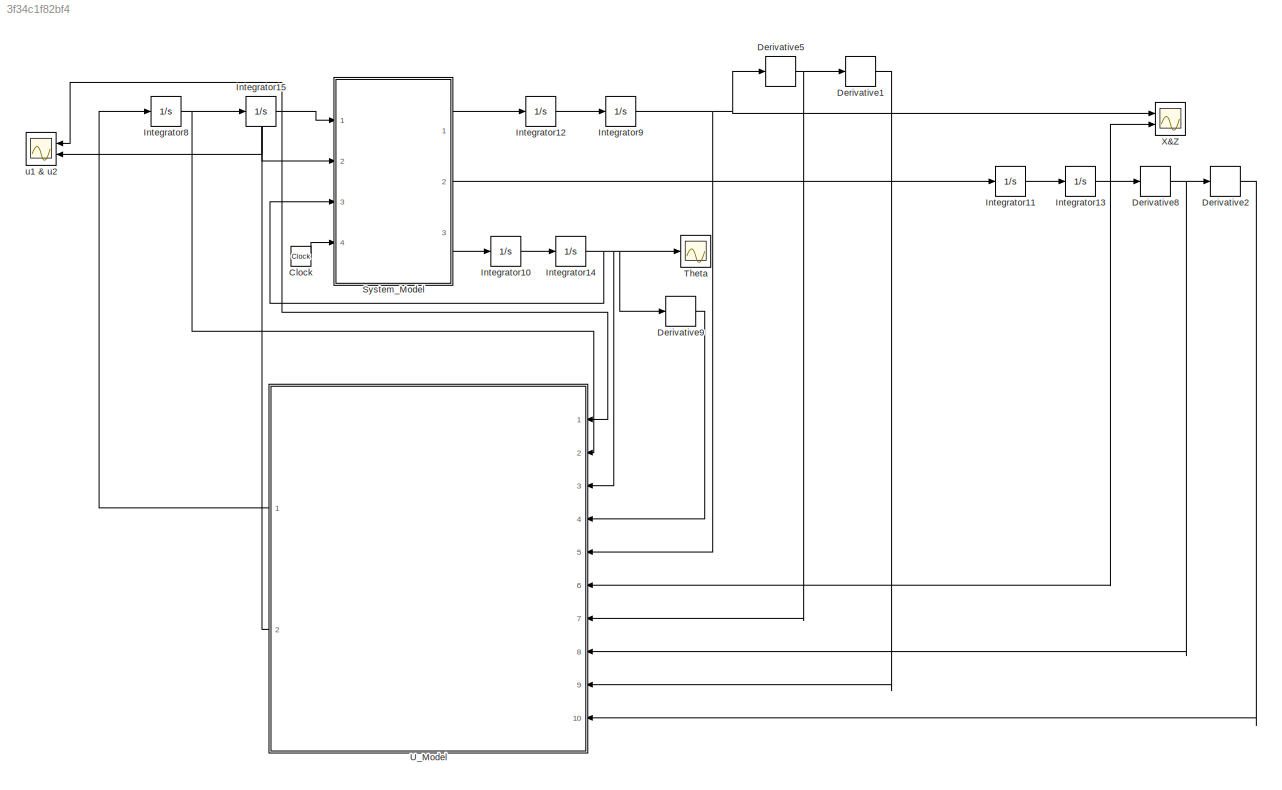
MODEL slx_3f34c1f82bf4
KIND model
CONFIG AbsTol = auto
CONFIG EnableMultiTasking = off
CONFIG FixedStep = 0.001
CONFIG MaxStep = auto
CONFIG MinStep = auto
CONFIG RelTol = 1e-3
CONFIG SampleTimeConstraint = Unconstrained
CONFIG Solver = FixedStepAuto
CONFIG SolverName = FixedStepAuto
CONFIG StartTime = 0.0
CONFIG StopTime = 20.0
BLOCK [Clock] Clock
BLOCK [Derivative] Derivative1
BLOCK [Derivative] Derivative2
BLOCK [Derivative] Derivative5
BLOCK [Derivative] Derivative8
BLOCK [Derivative] Derivative9
BLOCK [Integrator] Integrator10
  InitialCondition = 1
  Ports = [1, 1]
BLOCK [Integrator] Integrator11
  Ports = [1, 1]
BLOCK [Integrator] Integrator12
  InitialCondition = 1
  Ports = [1, 1]
BLOCK [Integrator] Integrator13
  Ports = [1, 1]
BLOCK [Integrator] Integrator14
  Ports = [1, 1]
BLOCK [Integrator] Integrator15
  InitialCondition = 1
  Ports = [1, 1]
BLOCK [Integrator] Integrator8
  Ports = [1, 1]
BLOCK [Integrator] Integrator9
  InitialCondition = 1
  Ports = [1, 1]
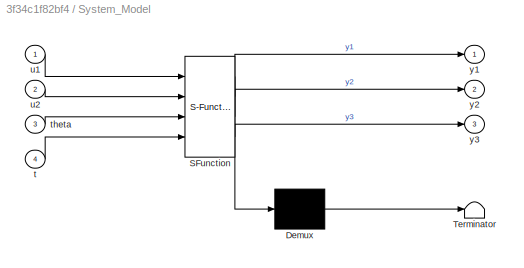
BLOCK [SubSystem] System_Model
  ErrorFcn = Stateflow.Translate.translate
  PermitHierarchicalResolution = ExplicitOnly
  Ports = [4, 3]
  RequestExecContextInheritance = off
  SFBlockType = MATLAB Function
  TreatAsAtomicUnit = on
  Variant = off
BLOCK [Demux] System_Model/ Demux 
  Outputs = 1
  Ports = [1, 1]
BLOCK [S-Function] System_Model/ SFunction 
  EnableBusSupport = on
  FunctionName = sf_sfun
  PortCounts = [4 4]
  Ports = [4, 4]
  SFcnIsStateOwnerBlock = off
  SFunctionDeploymentMode = off
  Tag = Stateflow S-Function NOLCOlab2Q3 3
BLOCK [Terminator] System_Model/ Terminator 
BLOCK [Inport] System_Model/t
  IconDisplay = Port number
  Port = 4
BLOCK [Inport] System_Model/theta
  IconDisplay = Port number
  Port = 3
BLOCK [Inport] System_Model/u1
  IconDisplay = Port number
BLOCK [Inport] System_Model/u2
  IconDisplay = Port number
  Port = 2
BLOCK [Outport] System_Model/y1
  IconDisplay = Port number
BLOCK [Outport] System_Model/y2
  IconDisplay = Port number
  Port = 2
BLOCK [Outport] System_Model/y3
  IconDisplay = Port number
  Port = 3
BLOCK [Scope] Theta
  NumInputPorts = 1
  Ports = [1]
  ScopeSpecificationString = Simulink.scopes.TimeScopeBlockCfg('CurrentConfiguration', extmgr.ConfigurationSet(extmgr.Configuration('Core','General UI',true),extmgr.Configuration('Core','Source UI',true),extmgr.Configuration('Sources','WiredSimulink',true,'DataLoggingVariableName','ScopeData1','DataLoggingSaveFormat','Array','DataLoggingDecimation','1','DataLoggingDecimateData',true),extmgr.Configuration('Visuals','Time Domai...<+1483ch>
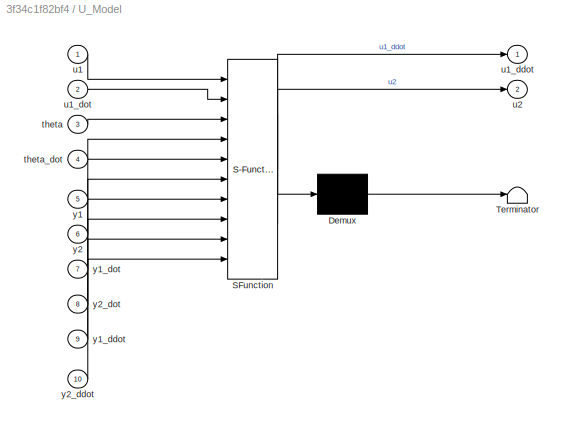
BLOCK [SubSystem] U_Model
  ErrorFcn = Stateflow.Translate.translate
  PermitHierarchicalResolution = ExplicitOnly
  Ports = [10, 2]
  RequestExecContextInheritance = off
  SFBlockType = MATLAB Function
  TreatAsAtomicUnit = on
  Variant = off
BLOCK [Demux] U_Model/ Demux 
  Outputs = 1
  Ports = [1, 1]
BLOCK [S-Function] U_Model/ SFunction 
  EnableBusSupport = on
  FunctionName = sf_sfun
  PortCounts = [10 3]
  Ports = [10, 3]
  SFcnIsStateOwnerBlock = off
  SFunctionDeploymentMode = off
  Tag = Stateflow S-Function NOLCOlab2Q3 4
BLOCK [Terminator] U_Model/ Terminator 
BLOCK [Inport] U_Model/theta
  IconDisplay = Port number
  Port = 3
BLOCK [Inport] U_Model/theta_dot
  IconDisplay = Port number
  Port = 4
BLOCK [Inport] U_Model/u1
  IconDisplay = Port number
BLOCK [Outport] U_Model/u1_ddot
  IconDisplay = Port number
BLOCK [Inport] U_Model/u1_dot
  IconDisplay = Port number
  Port = 2
BLOCK [Outport] U_Model/u2
  IconDisplay = Port number
  Port = 2
BLOCK [Inport] U_Model/y1
  IconDisplay = Port number
  Port = 5
BLOCK [Inport] U_Model/y1_ddot
  IconDisplay = Port number
  Port = 9
BLOCK [Inport] U_Model/y1_dot
  IconDisplay = Port number
  Port = 7
BLOCK [Inport] U_Model/y2
  IconDisplay = Port number
  Port = 6
BLOCK [Inport] U_Model/y2_ddot
  IconDisplay = Port number
  Port = 10
BLOCK [Inport] U_Model/y2_dot
  IconDisplay = Port number
  Port = 8
BLOCK [Scope] X&Z
  NumInputPorts = 2
  Ports = [2]
  ScopeSpecificationString = Simulink.scopes.TimeScopeBlockCfg('CurrentConfiguration', extmgr.ConfigurationSet(extmgr.Configuration('Core','General UI',true),extmgr.Configuration('Core','Source UI',true),extmgr.Configuration('Sources','WiredSimulink',true,'DataLoggingSaveFormat','Array','DataLoggingDecimation','1','DataLoggingDecimateData',true,'DataLoggingVariableName','ScopeData2'),extmgr.Configuration('Visuals','Time Domai...<+1534ch>
BLOCK [Scope] u1 & u2
  NumInputPorts = 2
  Ports = [2]
  ScopeSpecificationString = Simulink.scopes.TimeScopeBlockCfg('CurrentConfiguration', extmgr.ConfigurationSet(extmgr.Configuration('Core','General UI',true),extmgr.Configuration('Core','Source UI',true),extmgr.Configuration('Sources','WiredSimulink',true,'DataLoggingSaveFormat','Array','DataLoggingDecimation','1','DataLoggingDecimateData',true),extmgr.Configuration('Visuals','Time Domain',true,'SerializedDisplays',{struct('M...<+1489ch>
LINE Clock:1 -> System_Model:4
LINE Derivative1:1 -> U_Model:9
LINE Derivative2:1 -> U_Model:10
NET Derivative5:1 -> Derivative1:1, U_Model:7
NET Derivative8:1 -> Derivative2:1, U_Model:8
LINE Derivative9:1 -> U_Model:4
LINE Integrator10:1 -> Integrator14:1
LINE Integrator11:1 -> Integrator13:1
LINE Integrator12:1 -> Integrator9:1
NET Integrator13:1 -> Derivative8:1, U_Model:6, X&Z:2
NET Integrator14:1 -> Derivative9:1, System_Model:3, Theta:1, U_Model:3
NET Integrator15:1 -> System_Model:1, U_Model:1, u1 & u2:1
NET Integrator8:1 -> Integrator15:1, U_Model:2
NET Integrator9:1 -> Derivative5:1, U_Model:5, X&Z:1
LINE System_Model:1 -> Integrator12:1
LINE System_Model:2 -> Integrator11:1
LINE System_Model:3 -> Integrator10:1
LINE U_Model:1 -> Integrator8:1
NET U_Model:2 -> System_Model:2, u1 & u2:2
note: NET lines group one-source signal fan-out (src -> all destinations, sorted); 1:1 wires keep LINE
CHART System_Model states=1 transitions=1
  STATE_LABEL 'eML_blk_kernel()'
  STATE_LABEL 'SCRIPT:\nfunction [y1,y2,y3] = fcn(u1,u2,theta,t)\ndelta = 0;\nx_ddot = -u1*sin(theta);\nz_ddot = u1*cos(theta) - 1;\ntheta_ddot = u2 + delta * sin(t);\n\ny1 = x_ddot;\ny2 = z_ddot;\ny3 = theta_ddot;\n\nend'
CHART U_Model states=1 transitions=1
  STATE_LABEL 'eML_blk_kernel()'
  STATE_LABEL 'SCRIPT:\nfunction [u1_ddot, u2] = fcn(u1,u1_dot,theta,theta_dot,y1,y2,y1_dot,y2_dot,y1_ddot,y2_ddot)\n%y1_ddot,y2_dot,y2_ddot,y1_dddot,y2_dddot\n%GAINS-\nk1 = 400;\nk2 = 400;\nc1 = 1;\nc2 = 3;\nc3 = 3;\nc4 = 1;\n\n%STATES\ny1_dddot = -u1_dot*sin(theta) - u1*theta_dot*cos(theta);\ny2_dddot = u1_dot*cos(theta) - u1*theta_dot*sin(theta);\n\n%Sliding Variable\ns1 = c1*y1_dddot+c2*y1_ddot+c3*y1_dot+c4*y1;\ns2 = c1*y2_d...<+602ch>'
